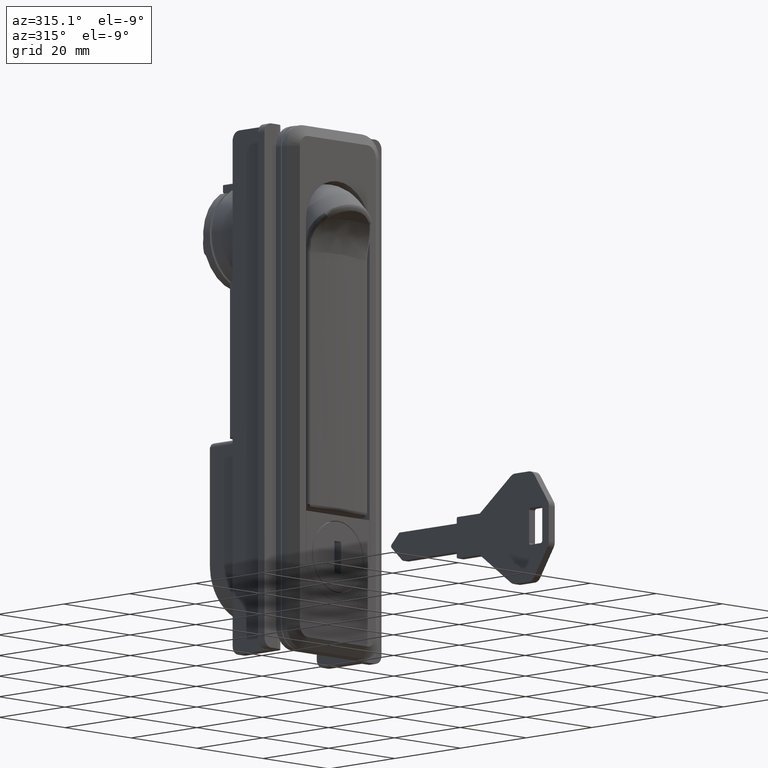
[diagram: clean part render]
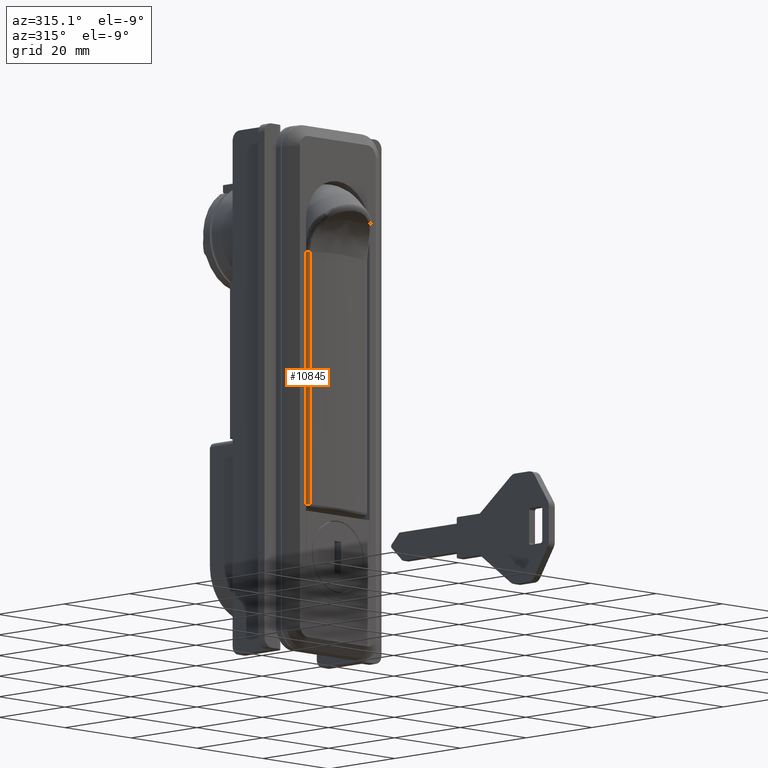
[diagram: same view with one face highlighted and labeled with its STEP entity id]
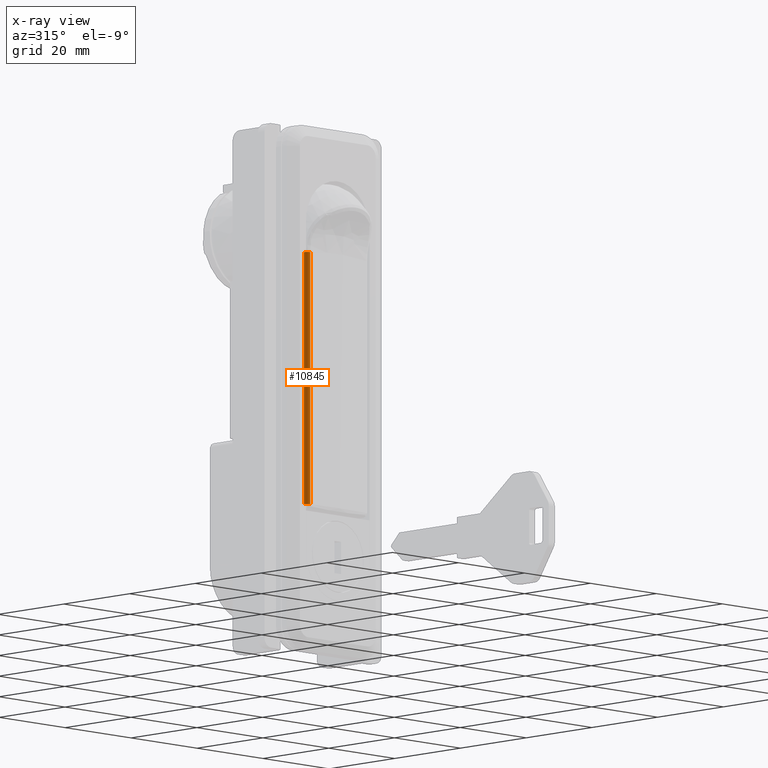
[diagram: x-ray of the same camera — body ghosted, the highlighted face saturated]
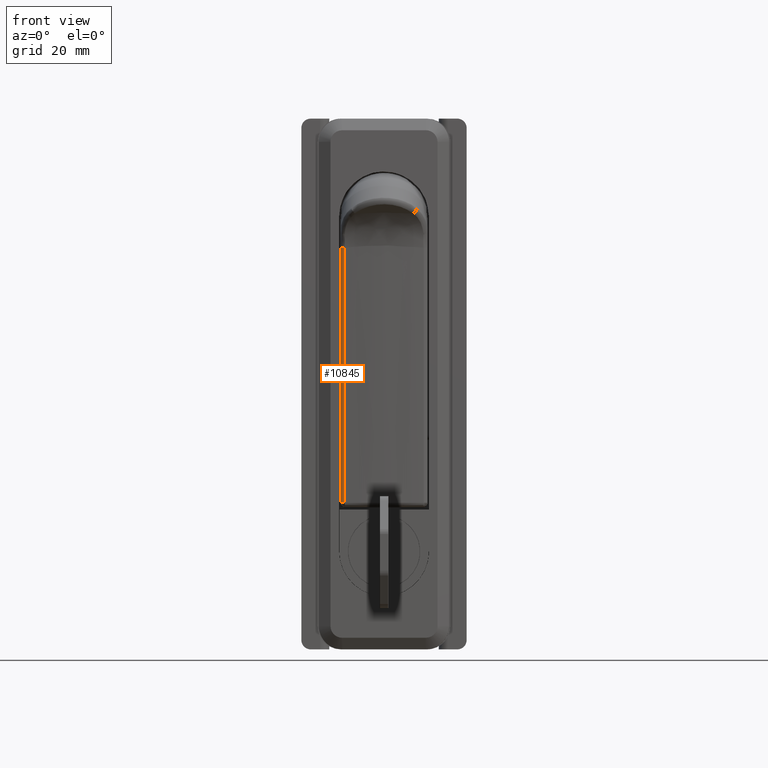
[diagram: same view with one face highlighted and labeled with its STEP entity id]
A machine part, auxiliary view. The second image highlights one B-rep face of the part: STEP entity #10845.
The next image is the same camera in x-ray: the body ghosted, the highlighted face saturated — about 0% of this face is hidden behind the body in this view.
A second angle (front view) of the same face is appended — the face is thin or edge-on in the first view.
In plain terms, the highlighted face is a freeform B-spline surface patch.
Its self-contained STEP definition (entity closure, byte-faithful):
#10336=CARTESIAN_POINT('',(-3.092181116743240,8.446342448367361,-61.500000442322097));
#10337=VERTEX_POINT('',#10336);
#10543=CARTESIAN_POINT('',(-2.096832869825315,9.350000000000001,-61.500000442322097));
#10544=VERTEX_POINT('',#10543);
#10545=CARTESIAN_POINT('',(-3.092181116743238,8.446342448367361,-61.500000442322097));
#10546=CARTESIAN_POINT('',(-3.004713658715835,9.350000000000001,-61.500000442322090));
#10547=CARTESIAN_POINT('',(-2.096832869825315,9.350000000000001,-61.500000442322097));
#10555=(BOUNDED_CURVE()B_SPLINE_CURVE(2,(#10545,#10546,#10547),.UNSPECIFIED.,.F.,.U.)CURVE()GEOMETRIC_REPRESENTATION_ITEM()QUASI_UNIFORM_CURVE()RATIONAL_B_SPLINE_CURVE((1.0,0.740385861685433,1.0))REPRESENTATION_ITEM(''));
#10556=EDGE_CURVE('',#10337,#10544,#10555,.T.);
#10801=CARTESIAN_POINT('',(-3.094967668247182,8.411048539534857,-62.869950399316302));
#10802=CARTESIAN_POINT('',(-3.094967668247182,8.411048539534857,-5.297803456635570));
#10803=CARTESIAN_POINT('',(-3.033566778497179,9.414944213051321,-62.869950399316295));
#10804=CARTESIAN_POINT('',(-3.033566778497179,9.414944213051321,-5.297803456635569));
#10805=CARTESIAN_POINT('',(-2.030041090737756,9.347766935835375,-62.869950399316302));
#10806=CARTESIAN_POINT('',(-2.030041090737756,9.347766935835375,-5.297803456635570));
#10814=(BOUNDED_SURFACE()B_SPLINE_SURFACE(1,2,((#10801,#10803,#10805),(#10802,#10804,#10806)),.UNSPECIFIED.,.F.,.F.,.U.)B_SPLINE_SURFACE_WITH_KNOTS((2,2),(3,3),(0.0,57.572146942680732),(0.0,0.991819292866252),.UNSPECIFIED.)GEOMETRIC_REPRESENTATION_ITEM()RATIONAL_B_SPLINE_SURFACE(((1.0,0.703356038015031,0.995146485248013),(1.0,0.703356038015031,0.995146485248013)))REPRESENTATION_ITEM('')SURFACE());
#10815=CARTESIAN_POINT('',(-3.092181116743255,8.446342448367370,-6.702002162554610));
#10816=VERTEX_POINT('',#10815);
#10817=CARTESIAN_POINT('',(-2.096832869825305,9.350000000000001,-6.702002162554610));
#10818=VERTEX_POINT('',#10817);
#10819=CARTESIAN_POINT('',(-3.092181116743255,8.446342448367370,-6.702002162554610));
#10820=CARTESIAN_POINT('',(-3.004713658715818,9.350000000000001,-6.702002162554611));
#10821=CARTESIAN_POINT('',(-2.096832869825305,9.350000000000001,-6.702002162554610));
#10829=(BOUNDED_CURVE()B_SPLINE_CURVE(2,(#10819,#10820,#10821),.UNSPECIFIED.,.F.,.U.)CURVE()GEOMETRIC_REPRESENTATION_ITEM()QUASI_UNIFORM_CURVE()RATIONAL_B_SPLINE_CURVE((1.0,0.740385861685435,1.0))REPRESENTATION_ITEM(''));
#10830=EDGE_CURVE('',#10816,#10818,#10829,.T.);
#10831=ORIENTED_EDGE('',*,*,#10830,.T.);
#10832=CARTESIAN_POINT('',(-2.096832869825315,9.350000000000001,-61.500000442322097));
#10833=CARTESIAN_POINT('',(-2.096832869825305,9.350000000000001,-6.702002162554610));
#10834=QUASI_UNIFORM_CURVE('',1,(#10832,#10833),.UNSPECIFIED.,.F.,.U.);
#10835=EDGE_CURVE('',#10544,#10818,#10834,.T.);
#10836=ORIENTED_EDGE('',*,*,#10835,.F.);
#10837=ORIENTED_EDGE('',*,*,#10556,.F.);
#10838=CARTESIAN_POINT('',(-3.092181116743255,8.446342448367370,-6.702002162554610));
#10839=CARTESIAN_POINT('',(-3.092181116743240,8.446342448367361,-61.500000442322097));
#10840=QUASI_UNIFORM_CURVE('',1,(#10838,#10839),.UNSPECIFIED.,.F.,.U.);
#10841=EDGE_CURVE('',#10816,#10337,#10840,.T.);
#10842=ORIENTED_EDGE('',*,*,#10841,.F.);
#10843=EDGE_LOOP('',(#10831,#10836,#10837,#10842));
#10844=FACE_OUTER_BOUND('',#10843,.T.);
#10845=ADVANCED_FACE('',(#10844),#10814,.T.);